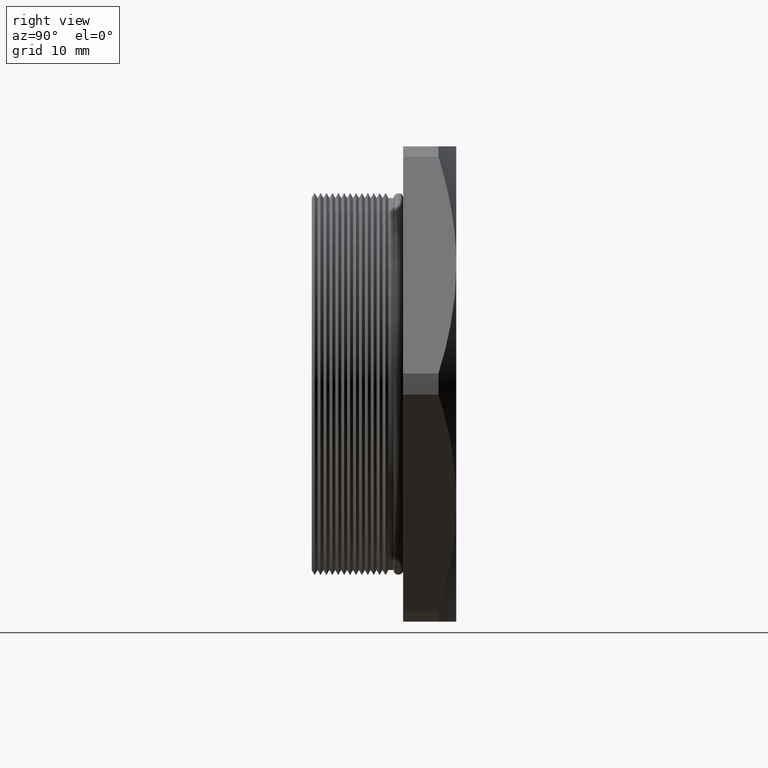
[diagram: clean part render]
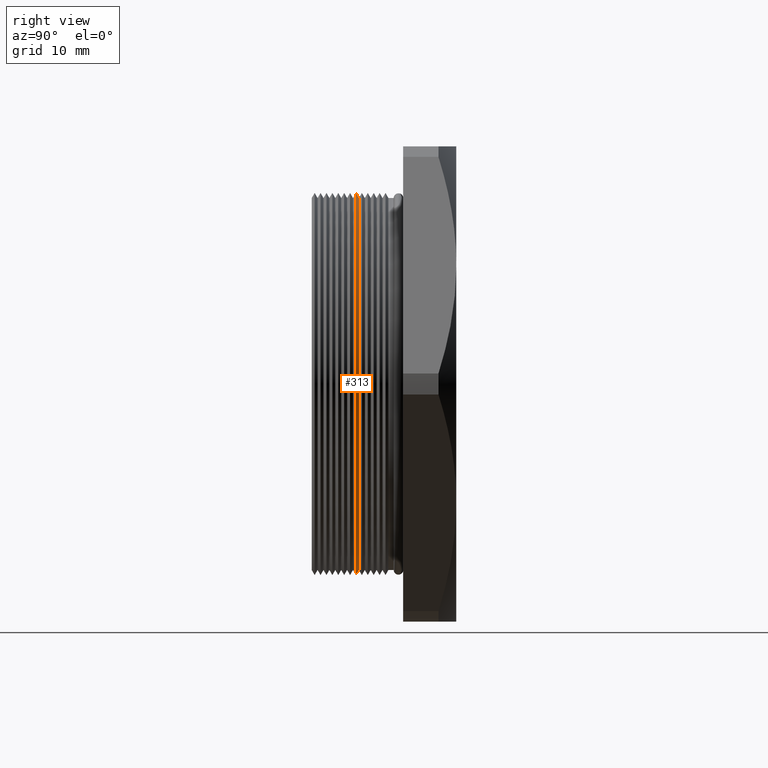
[diagram: same view with one face highlighted and labeled with its STEP entity id]
A machine part, right view. The second image highlights one B-rep face of the part: STEP entity #313.
In plain terms, the highlighted conical surface has half-angle 60 deg.
Its self-contained STEP definition (entity closure, byte-faithful):
#274 = VERTEX_POINT ( 'NONE', #1218 ) ;
#279 = EDGE_CURVE ( 'NONE', #305, #274, #1217, .T. ) ;
#305 = VERTEX_POINT ( 'NONE', #1226 ) ;
#312 = ORIENTED_EDGE ( 'NONE', *, *, #341, .T. ) ;
#313 = ADVANCED_FACE ( 'NONE', ( #1278 ), #1277, .T. ) ;
#317 = VERTEX_POINT ( 'NONE', #1267 ) ;
#318 = EDGE_CURVE ( 'NONE', #317, #274, #1265, .T. ) ;
#320 = ORIENTED_EDGE ( 'NONE', *, *, #346, .F. ) ;
#329 = ORIENTED_EDGE ( 'NONE', *, *, #318, .T. ) ;
#334 = EDGE_LOOP ( 'NONE', ( #312, #329, #344, #320 ) ) ;
#337 = VERTEX_POINT ( 'NONE', #1287 ) ;
#341 = EDGE_CURVE ( 'NONE', #337, #317, #1342, .T. ) ;
#344 = ORIENTED_EDGE ( 'NONE', *, *, #279, .F. ) ;
#346 = EDGE_CURVE ( 'NONE', #337, #305, #1332, .T. ) ;
#1213 = DIRECTION ( 'NONE',  ( 0.0000000000000000000, 0.0000000000000000000, -1.000000000000000000 ) ) ;
#1214 = DIRECTION ( 'NONE',  ( 0.0000000000000000000, -1.000000000000000000, 0.0000000000000000000 ) ) ;
#1215 = CARTESIAN_POINT ( 'NONE',  ( 0.0000000000000000000, 0.1499999999999998000, 0.0000000000000000000 ) ) ;
#1216 = AXIS2_PLACEMENT_3D ( 'NONE', #1215, #1214, #1213 ) ;
#1217 = CIRCLE ( 'NONE', #1216, 0.6473205080756885300 ) ;
#1218 = CARTESIAN_POINT ( 'NONE',  ( 7.927389882373304600E-017, 0.1499999999999998000, 0.6473205080756885300 ) ) ;
#1226 = CARTESIAN_POINT ( 'NONE',  ( 0.0000000000000000000, 0.1499999999999998000, -0.6473205080756885300 ) ) ;
#1262 = DIRECTION ( 'NONE',  ( 1.060575238724901900E-016, -0.5000000000000072200, 0.8660254037844344900 ) ) ;
#1263 = VECTOR ( 'NONE', #1262, 39.37007874015748100 ) ;
#1264 = CARTESIAN_POINT ( 'NONE',  ( 7.715274834628325400E-017, 0.1599999999999998900, 0.6300000000000000000 ) ) ;
#1265 = LINE ( 'NONE', #1264, #1263 ) ;
#1267 = CARTESIAN_POINT ( 'NONE',  ( 0.0000000000000000000, 0.1599999999999998900, 0.6300000000000000000 ) ) ;
#1273 = DIRECTION ( 'NONE',  ( 0.0000000000000000000, 0.0000000000000000000, -1.000000000000000000 ) ) ;
#1274 = DIRECTION ( 'NONE',  ( 0.0000000000000000000, -1.000000000000000000, 0.0000000000000000000 ) ) ;
#1275 = CARTESIAN_POINT ( 'NONE',  ( 0.0000000000000000000, 0.1599999999999998900, 0.0000000000000000000 ) ) ;
#1276 = AXIS2_PLACEMENT_3D ( 'NONE', #1275, #1274, #1273 ) ;
#1277 = CONICAL_SURFACE ( 'NONE', #1276, 0.6300000000000000000, 1.047197551196589400 ) ;
#1278 = FACE_OUTER_BOUND ( 'NONE', #334, .T. ) ;
#1287 = CARTESIAN_POINT ( 'NONE',  ( 7.821332358500815000E-017, 0.1599999999999998900, -0.6300000000000000000 ) ) ;
#1329 = DIRECTION ( 'NONE',  ( 0.0000000000000000000, -0.5000000000000072200, -0.8660254037844344900 ) ) ;
#1330 = VECTOR ( 'NONE', #1329, 39.37007874015748100 ) ;
#1331 = CARTESIAN_POINT ( 'NONE',  ( 0.0000000000000000000, 0.1599999999999998900, -0.6300000000000000000 ) ) ;
#1332 = LINE ( 'NONE', #1331, #1330 ) ;
#1338 = DIRECTION ( 'NONE',  ( 0.0000000000000000000, 0.0000000000000000000, -1.000000000000000000 ) ) ;
#1339 = DIRECTION ( 'NONE',  ( 0.0000000000000000000, -1.000000000000000000, 0.0000000000000000000 ) ) ;
#1340 = CARTESIAN_POINT ( 'NONE',  ( 0.0000000000000000000, 0.1599999999999998900, 0.0000000000000000000 ) ) ;
#1341 = AXIS2_PLACEMENT_3D ( 'NONE', #1340, #1339, #1338 ) ;
#1342 = CIRCLE ( 'NONE', #1341, 0.6300000000000000000 ) ;